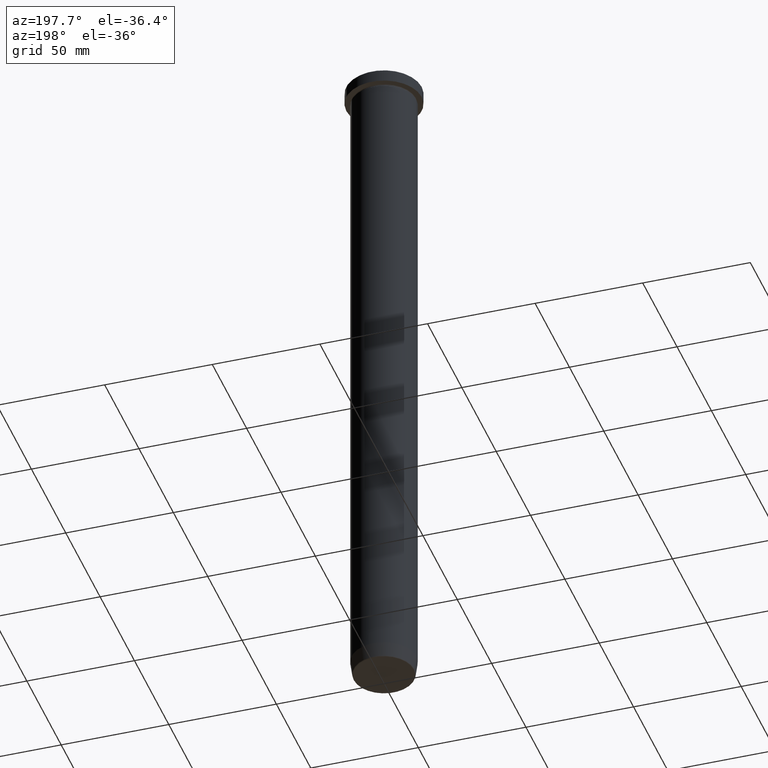
[diagram: clean part render]
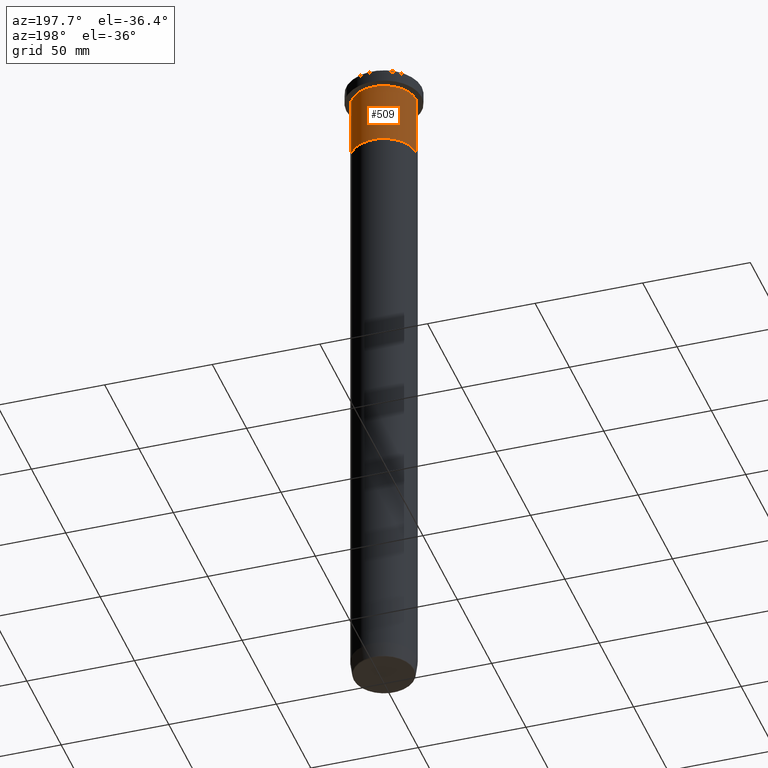
[diagram: same view with one face highlighted and labeled with its STEP entity id]
A machine part, auxiliary view. The second image highlights one B-rep face of the part: STEP entity #509.
In plain terms, the highlighted cylindrical surface (edge-blend (fillet) strip) has radius 15 mm, axis along (-0, -0, 1).
Its self-contained STEP definition (entity closure, byte-faithful):
#24 = AXIS2_PLACEMENT_3D ( 'NONE', #467, #427, #159 ) ;
#38 = VERTEX_POINT ( 'NONE', #72 ) ;
#72 = CARTESIAN_POINT ( 'NONE',  ( -15.00000000000000000, 1.836970198721029589E-15, -6.999999999999999112 ) ) ;
#78 = ORIENTED_EDGE ( 'NONE', *, *, #219, .T. ) ;
#101 = CARTESIAN_POINT ( 'NONE',  ( 15.00000000000000000, 0.000000000000000000, 0.000000000000000000 ) ) ;
#120 = VERTEX_POINT ( 'NONE', #287 ) ;
#123 = ORIENTED_EDGE ( 'NONE', *, *, #564, .F. ) ;
#149 = EDGE_LOOP ( 'NONE', ( #201, #78, #123, #578 ) ) ;
#159 = DIRECTION ( 'NONE',  ( 1.000000000000000000, 0.000000000000000000, 0.000000000000000000 ) ) ;
#167 = CARTESIAN_POINT ( 'NONE',  ( 15.00000000000000000, 0.000000000000000000, -36.00000000000000000 ) ) ;
#172 = VECTOR ( 'NONE', #196, 1000.000000000000000 ) ;
#179 = EDGE_CURVE ( 'NONE', #250, #421, #403, .T. ) ;
#196 = DIRECTION ( 'NONE',  ( -0.000000000000000000, -0.000000000000000000, 1.000000000000000000 ) ) ;
#201 = ORIENTED_EDGE ( 'NONE', *, *, #179, .T. ) ;
#216 = VECTOR ( 'NONE', #529, 1000.000000000000000 ) ;
#219 = EDGE_CURVE ( 'NONE', #421, #38, #257, .T. ) ;
#237 = CARTESIAN_POINT ( 'NONE',  ( 0.000000000000000000, 0.000000000000000000, -36.00000000000000000 ) ) ;
#250 = VERTEX_POINT ( 'NONE', #167 ) ;
#257 = LINE ( 'NONE', #450, #216 ) ;
#265 = CARTESIAN_POINT ( 'NONE',  ( -15.00000000000000000, 1.836970198721029589E-15, -36.00000000000000000 ) ) ;
#287 = CARTESIAN_POINT ( 'NONE',  ( 15.00000000000000000, 0.000000000000000000, -6.999999999999999112 ) ) ;
#377 = FACE_OUTER_BOUND ( 'NONE', #149, .T. ) ;
#386 = CIRCLE ( 'NONE', #24, 15.00000000000000000 ) ;
#403 = CIRCLE ( 'NONE', #475, 15.00000000000000000 ) ;
#420 = CYLINDRICAL_SURFACE ( 'NONE', #528, 15.00000000000000000 ) ;
#421 = VERTEX_POINT ( 'NONE', #265 ) ;
#424 = CARTESIAN_POINT ( 'NONE',  ( 0.000000000000000000, 0.000000000000000000, 0.000000000000000000 ) ) ;
#427 = DIRECTION ( 'NONE',  ( -0.000000000000000000, -0.000000000000000000, 1.000000000000000000 ) ) ;
#431 = DIRECTION ( 'NONE',  ( -0.000000000000000000, -0.000000000000000000, 1.000000000000000000 ) ) ;
#450 = CARTESIAN_POINT ( 'NONE',  ( -15.00000000000000000, 1.836970198721029589E-15, 0.000000000000000000 ) ) ;
#461 = LINE ( 'NONE', #101, #172 ) ;
#467 = CARTESIAN_POINT ( 'NONE',  ( 0.000000000000000000, 0.000000000000000000, -6.999999999999999112 ) ) ;
#469 = DIRECTION ( 'NONE',  ( 1.000000000000000000, 0.000000000000000000, 0.000000000000000000 ) ) ;
#475 = AXIS2_PLACEMENT_3D ( 'NONE', #237, #431, #469 ) ;
#509 = ADVANCED_FACE ( 'NONE', ( #377 ), #420, .T. ) ;
#528 = AXIS2_PLACEMENT_3D ( 'NONE', #424, #567, #598 ) ;
#529 = DIRECTION ( 'NONE',  ( -0.000000000000000000, -0.000000000000000000, 1.000000000000000000 ) ) ;
#543 = EDGE_CURVE ( 'NONE', #250, #120, #461, .T. ) ;
#564 = EDGE_CURVE ( 'NONE', #120, #38, #386, .T. ) ;
#567 = DIRECTION ( 'NONE',  ( -0.000000000000000000, -0.000000000000000000, 1.000000000000000000 ) ) ;
#578 = ORIENTED_EDGE ( 'NONE', *, *, #543, .F. ) ;
#598 = DIRECTION ( 'NONE',  ( 1.000000000000000000, 0.000000000000000000, 0.000000000000000000 ) ) ;